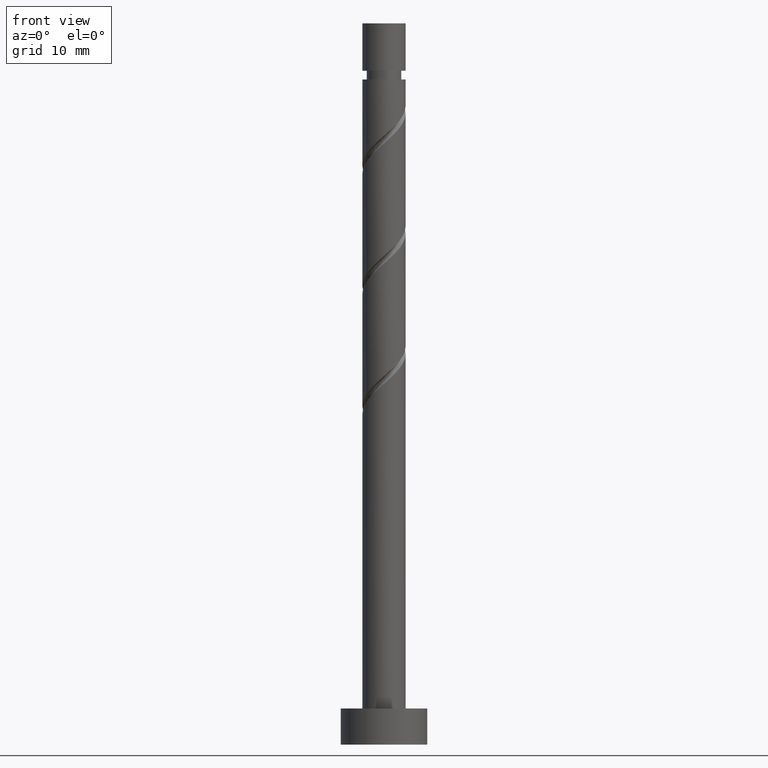
[diagram: clean part render]
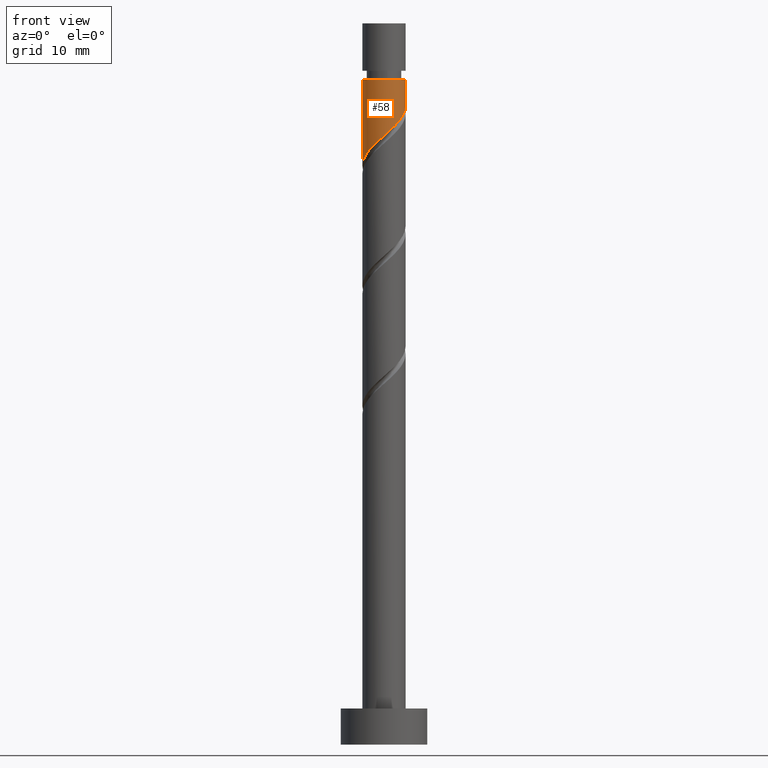
[diagram: same view with one face highlighted and labeled with its STEP entity id]
A machine part, front view. The second image highlights one B-rep face of the part: STEP entity #58.
In plain terms, the highlighted cylindrical surface (edge-blend (fillet) strip) has radius 3 mm, axis along (-0, -0, -1).
Its self-contained STEP definition (entity closure, byte-faithful):
#48 = LINE ( 'NONE', #1223, #941 ) ;
#58 = ADVANCED_FACE ( 'NONE', ( #161 ), #1431, .T. ) ;
#64 = CARTESIAN_POINT ( 'NONE',  ( -3.000000000000001776, 0.000000000000000000, 92.22674163329729424 ) ) ;
#72 = CARTESIAN_POINT ( 'NONE',  ( -2.017663480116602237, -2.282291593582125966, 82.50451941107505149 ) ) ;
#96 = CARTESIAN_POINT ( 'NONE',  ( 2.597982042461628449, -1.590694862058334103, 87.13414904070468481 ) ) ;
#147 = ORIENTED_EDGE ( 'NONE', *, *, #1117, .F. ) ;
#161 = FACE_OUTER_BOUND ( 'NONE', #1142, .T. ) ;
#177 = DIRECTION ( 'NONE',  ( -0.000000000000000000, -0.000000000000000000, -1.000000000000000000 ) ) ;
#304 = CARTESIAN_POINT ( 'NONE',  ( -3.000000000000000000, 1.979413067463429387E-15, 80.25759652161940494 ) ) ;
#306 = CARTESIAN_POINT ( 'NONE',  ( 0.4445498099232018108, -2.966879752618438282, 84.81933422588988947 ) ) ;
#314 = CARTESIAN_POINT ( 'NONE',  ( 2.247618455994263353, -1.987010638188423606, 86.67118607774175132 ) ) ;
#329 = CARTESIAN_POINT ( 'NONE',  ( -0.07859113898108563423, -3.045265878376719026, 84.35637126292687071 ) ) ;
#370 = AXIS2_PLACEMENT_3D ( 'NONE', #1309, #1408, #838 ) ;
#382 =( BOUNDED_CURVE ( )  B_SPLINE_CURVE ( 2, ( #1111, #1360, #649, #902, #1012, #96, #314, #1103, #640, #1473, #306, #329, #870, #442, #777, #72, #877, #532, #1233, #989, #1225 ),
 .UNSPECIFIED., .F., .T. ) 
 B_SPLINE_CURVE_WITH_KNOTS ( ( 3, 2, 2, 2, 2, 2, 2, 2, 2, 2, 3 ),
 ( 0.3045248053855290071, 0.3055555555555555802, 0.3194444444444444198, 0.3333333333333333148, 0.3472222222222222099, 0.3611111111111111049, 0.3750000000000000000, 0.3888888888888888951, 0.4027777777777777901, 0.4166666666666666852, 0.4295248053855289516 ),
 .UNSPECIFIED. ) 
 CURVE ( )  GEOMETRIC_REPRESENTATION_ITEM ( )  RATIONAL_B_SPLINE_CURVE ( ( 0.9071930855141192573, 0.9080659294509669799, 0.9090909090909071733, 0.8952797754656418583, 0.9090909090909071733, 0.8952797754656418583, 0.9090909090909071733, 0.8952797754656418583, 0.9090909090909071733, 0.8952797754656418583, 0.9090909090909071733, 0.8952797754656418583, 0.9090909090909071733, 0.8952797754656418583, 0.9090909090909071733, 0.8952797754656418583, 0.9090909090909071733, 0.8952797754656418583, 0.9090909090909071733, 0.8963047551055820517, 0.9071930855141192573 ) ) 
 REPRESENTATION_ITEM ( '' )  );
#383 = DIRECTION ( 'NONE',  ( -0.000000000000000000, -0.000000000000000000, -1.000000000000000000 ) ) ;
#442 = CARTESIAN_POINT ( 'NONE',  ( -1.115393785546859640, -2.834734121623280423, 83.43044533700100374 ) ) ;
#495 = CARTESIAN_POINT ( 'NONE',  ( -3.000000000000000444, 0.000000000000000000, 100.0000000000000000 ) ) ;
#530 = AXIS2_PLACEMENT_3D ( 'NONE', #1073, #1157, #1214 ) ;
#532 = CARTESIAN_POINT ( 'NONE',  ( -2.676573181442713167, -1.454571016318386256, 81.57859348514914188 ) ) ;
#559 = CARTESIAN_POINT ( 'NONE',  ( 3.000000000000001776, 3.673940397442061840E-16, 92.22674163329729424 ) ) ;
#608 = VECTOR ( 'NONE', #383, 1000.000000000000000 ) ;
#640 = CARTESIAN_POINT ( 'NONE',  ( 1.432472814177193854, -2.635910020589335545, 85.74526015181582750 ) ) ;
#649 = CARTESIAN_POINT ( 'NONE',  ( 2.999001447008924348, -0.07739716298663332217, 88.52303792959358475 ) ) ;
#725 = LINE ( 'NONE', #495, #608 ) ;
#777 = CARTESIAN_POINT ( 'NONE',  ( -1.566528632831730494, -2.558512857602702972, 82.96748237403802761 ) ) ;
#814 = CARTESIAN_POINT ( 'NONE',  ( 3.000000000000000444, 9.262159259074162814E-16, 88.59092985495270511 ) ) ;
#838 = DIRECTION ( 'NONE',  ( -1.000000000000000000, 0.000000000000000000, 0.000000000000000000 ) ) ;
#870 = CARTESIAN_POINT ( 'NONE',  ( -0.5969924622639719569, -2.939999999999999947, 83.89340829996395144 ) ) ;
#877 = CARTESIAN_POINT ( 'NONE',  ( -2.347118330779658368, -1.868431304950255223, 82.04155644811210379 ) ) ;
#902 = CARTESIAN_POINT ( 'NONE',  ( 2.985354238944091243, -0.6062020332780340137, 88.06007496663058021 ) ) ;
#907 = VERTEX_POINT ( 'NONE', #814 ) ;
#941 = VECTOR ( 'NONE', #177, 1000.000000000000000 ) ;
#989 = CARTESIAN_POINT ( 'NONE',  ( -2.999999999999998224, -0.4891631154613744203, 80.68751603398501970 ) ) ;
#1012 = CARTESIAN_POINT ( 'NONE',  ( 2.791668140702859180, -1.098448447668182615, 87.59711200366766093 ) ) ;
#1036 = EDGE_CURVE ( 'NONE', #1348, #1212, #725, .T. ) ;
#1064 = EDGE_CURVE ( 'NONE', #1303, #1348, #1446, .T. ) ;
#1073 = CARTESIAN_POINT ( 'NONE',  ( 0.000000000000000000, 0.000000000000000000, 92.22674163329729424 ) ) ;
#1103 = CARTESIAN_POINT ( 'NONE',  ( 1.897254869526898480, -2.383326414318513997, 86.20822311477876099 ) ) ;
#1111 = CARTESIAN_POINT ( 'NONE',  ( 3.000000000000000444, 9.262159259074162814E-16, 88.59092985495270511 ) ) ;
#1115 = ORIENTED_EDGE ( 'NONE', *, *, #1350, .F. ) ;
#1117 = EDGE_CURVE ( 'NONE', #1303, #907, #48, .T. ) ;
#1142 = EDGE_LOOP ( 'NONE', ( #147, #1386, #1379, #1115 ) ) ;
#1157 = DIRECTION ( 'NONE',  ( -0.000000000000000000, -0.000000000000000000, -1.000000000000000000 ) ) ;
#1212 = VERTEX_POINT ( 'NONE', #304 ) ;
#1214 = DIRECTION ( 'NONE',  ( -1.000000000000000000, 0.000000000000000000, 0.000000000000000000 ) ) ;
#1223 = CARTESIAN_POINT ( 'NONE',  ( 3.000000000000000444, 3.673940397442060361E-16, 100.0000000000000000 ) ) ;
#1225 = CARTESIAN_POINT ( 'NONE',  ( -3.000000000000000000, 1.979413067463428992E-15, 80.25759652161940494 ) ) ;
#1233 = CARTESIAN_POINT ( 'NONE',  ( -2.844610918258236421, -0.9529893618115772291, 81.11563052218619418 ) ) ;
#1303 = VERTEX_POINT ( 'NONE', #559 ) ;
#1309 = CARTESIAN_POINT ( 'NONE',  ( 0.000000000000000000, 0.000000000000000000, 100.0000000000000000 ) ) ;
#1348 = VERTEX_POINT ( 'NONE', #64 ) ;
#1350 = EDGE_CURVE ( 'NONE', #907, #1212, #382, .T. ) ;
#1360 = CARTESIAN_POINT ( 'NONE',  ( 3.000000000000000888, -0.03870502299606116969, 88.55691248102034763 ) ) ;
#1379 = ORIENTED_EDGE ( 'NONE', *, *, #1036, .T. ) ;
#1386 = ORIENTED_EDGE ( 'NONE', *, *, #1064, .T. ) ;
#1408 = DIRECTION ( 'NONE',  ( -0.000000000000000000, -0.000000000000000000, -1.000000000000000000 ) ) ;
#1431 = CYLINDRICAL_SURFACE ( 'NONE', #370, 3.000000000000000444 ) ;
#1446 = CIRCLE ( 'NONE', #530, 3.000000000000001776 ) ;
#1473 = CARTESIAN_POINT ( 'NONE',  ( 0.9676907588274877847, -2.888493626860158425, 85.28229718885282296 ) ) ;